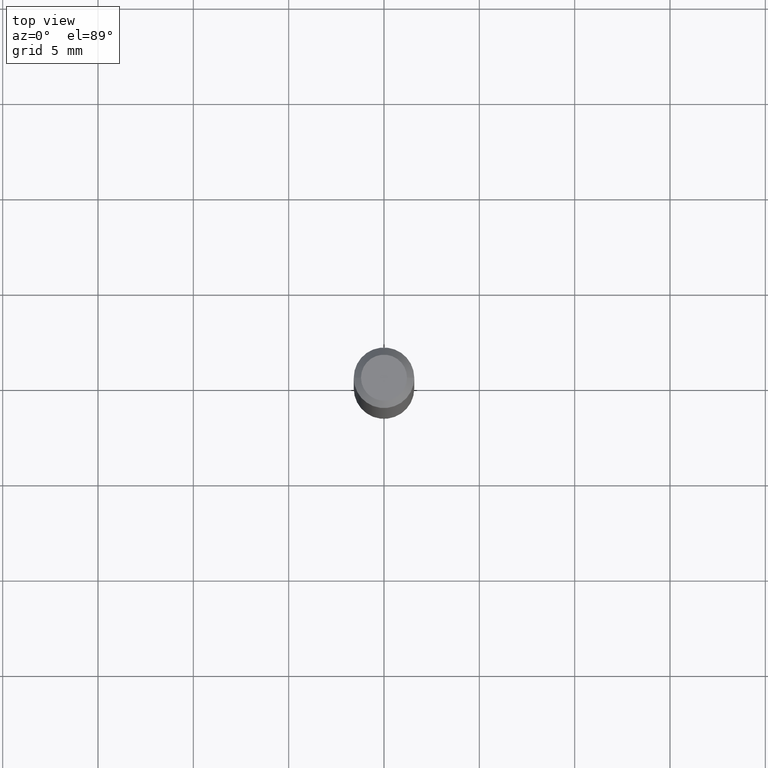
[diagram: clean part render]
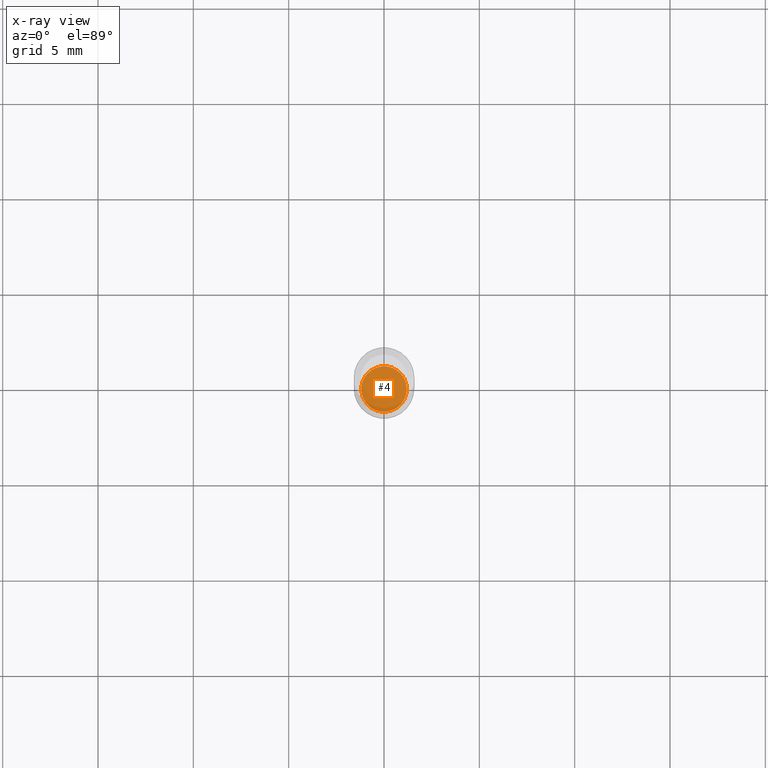
[diagram: x-ray — body ghosted, one internal face saturated and labeled with its STEP entity id]
A machine part, top view, then the same camera in x-ray: the body is ghosted and one INTERNAL B-rep face — a face not visible from any outside direction — is saturated and labeled: STEP entity #4.
In plain terms, the highlighted planar face has unit normal (-0, 0, 1).
Its self-contained STEP definition (entity closure, byte-faithful):
#4 = ADVANCED_FACE ( 'NONE', ( #223 ), #147, .F. ) ;
#20 = AXIS2_PLACEMENT_3D ( 'NONE', #297, #103, #372 ) ;
#29 = CARTESIAN_POINT ( 'NONE',  ( 3.319723904396323737E-29, -4.739685917479570727E-15, -1.357500000000000151 ) ) ;
#34 = CARTESIAN_POINT ( 'NONE',  ( -0.04700000000000000705, -4.403081604498212142E-15, -1.357500000000000151 ) ) ;
#74 = AXIS2_PLACEMENT_3D ( 'NONE', #29, #507, #85 ) ;
#85 = DIRECTION ( 'NONE',  ( 1.000000000000000000, -6.982962677686269866E-15, 0.000000000000000000 ) ) ;
#94 = EDGE_LOOP ( 'NONE', ( #294, #214 ) ) ;
#103 = DIRECTION ( 'NONE',  ( -2.438088387897960049E-29, 3.491481338843145188E-15, 1.000000000000000000 ) ) ;
#147 = PLANE ( 'NONE',  #20 ) ;
#157 = EDGE_CURVE ( 'NONE', #197, #282, #392, .T. ) ;
#197 = VERTEX_POINT ( 'NONE', #34 ) ;
#214 = ORIENTED_EDGE ( 'NONE', *, *, #157, .F. ) ;
#223 = FACE_OUTER_BOUND ( 'NONE', #94, .T. ) ;
#231 = DIRECTION ( 'NONE',  ( 1.000000000000000000, -6.982962677686269866E-15, 0.000000000000000000 ) ) ;
#282 = VERTEX_POINT ( 'NONE', #319 ) ;
#294 = ORIENTED_EDGE ( 'NONE', *, *, #498, .F. ) ;
#297 = CARTESIAN_POINT ( 'NONE',  ( 3.319723904396323737E-29, -4.739685917479570727E-15, -1.357500000000000151 ) ) ;
#319 = CARTESIAN_POINT ( 'NONE',  ( 0.04700000000000000705, -5.067885163330825231E-15, -1.357500000000000151 ) ) ;
#335 = DIRECTION ( 'NONE',  ( -2.445468806185136597E-29, 3.491481338843145583E-15, 1.000000000000000000 ) ) ;
#372 = DIRECTION ( 'NONE',  ( 1.000000000000000000, -6.982962677686265922E-15, 4.876176775795935793E-29 ) ) ;
#392 = CIRCLE ( 'NONE', #74, 0.04700000000000000705 ) ;
#422 = AXIS2_PLACEMENT_3D ( 'NONE', #463, #335, #231 ) ;
#463 = CARTESIAN_POINT ( 'NONE',  ( 3.319723904396323737E-29, -4.739685917479570727E-15, -1.357500000000000151 ) ) ;
#466 = CIRCLE ( 'NONE', #422, 0.04700000000000000705 ) ;
#498 = EDGE_CURVE ( 'NONE', #282, #197, #466, .T. ) ;
#507 = DIRECTION ( 'NONE',  ( -2.445468806185136597E-29, 3.491481338843145583E-15, 1.000000000000000000 ) ) ;